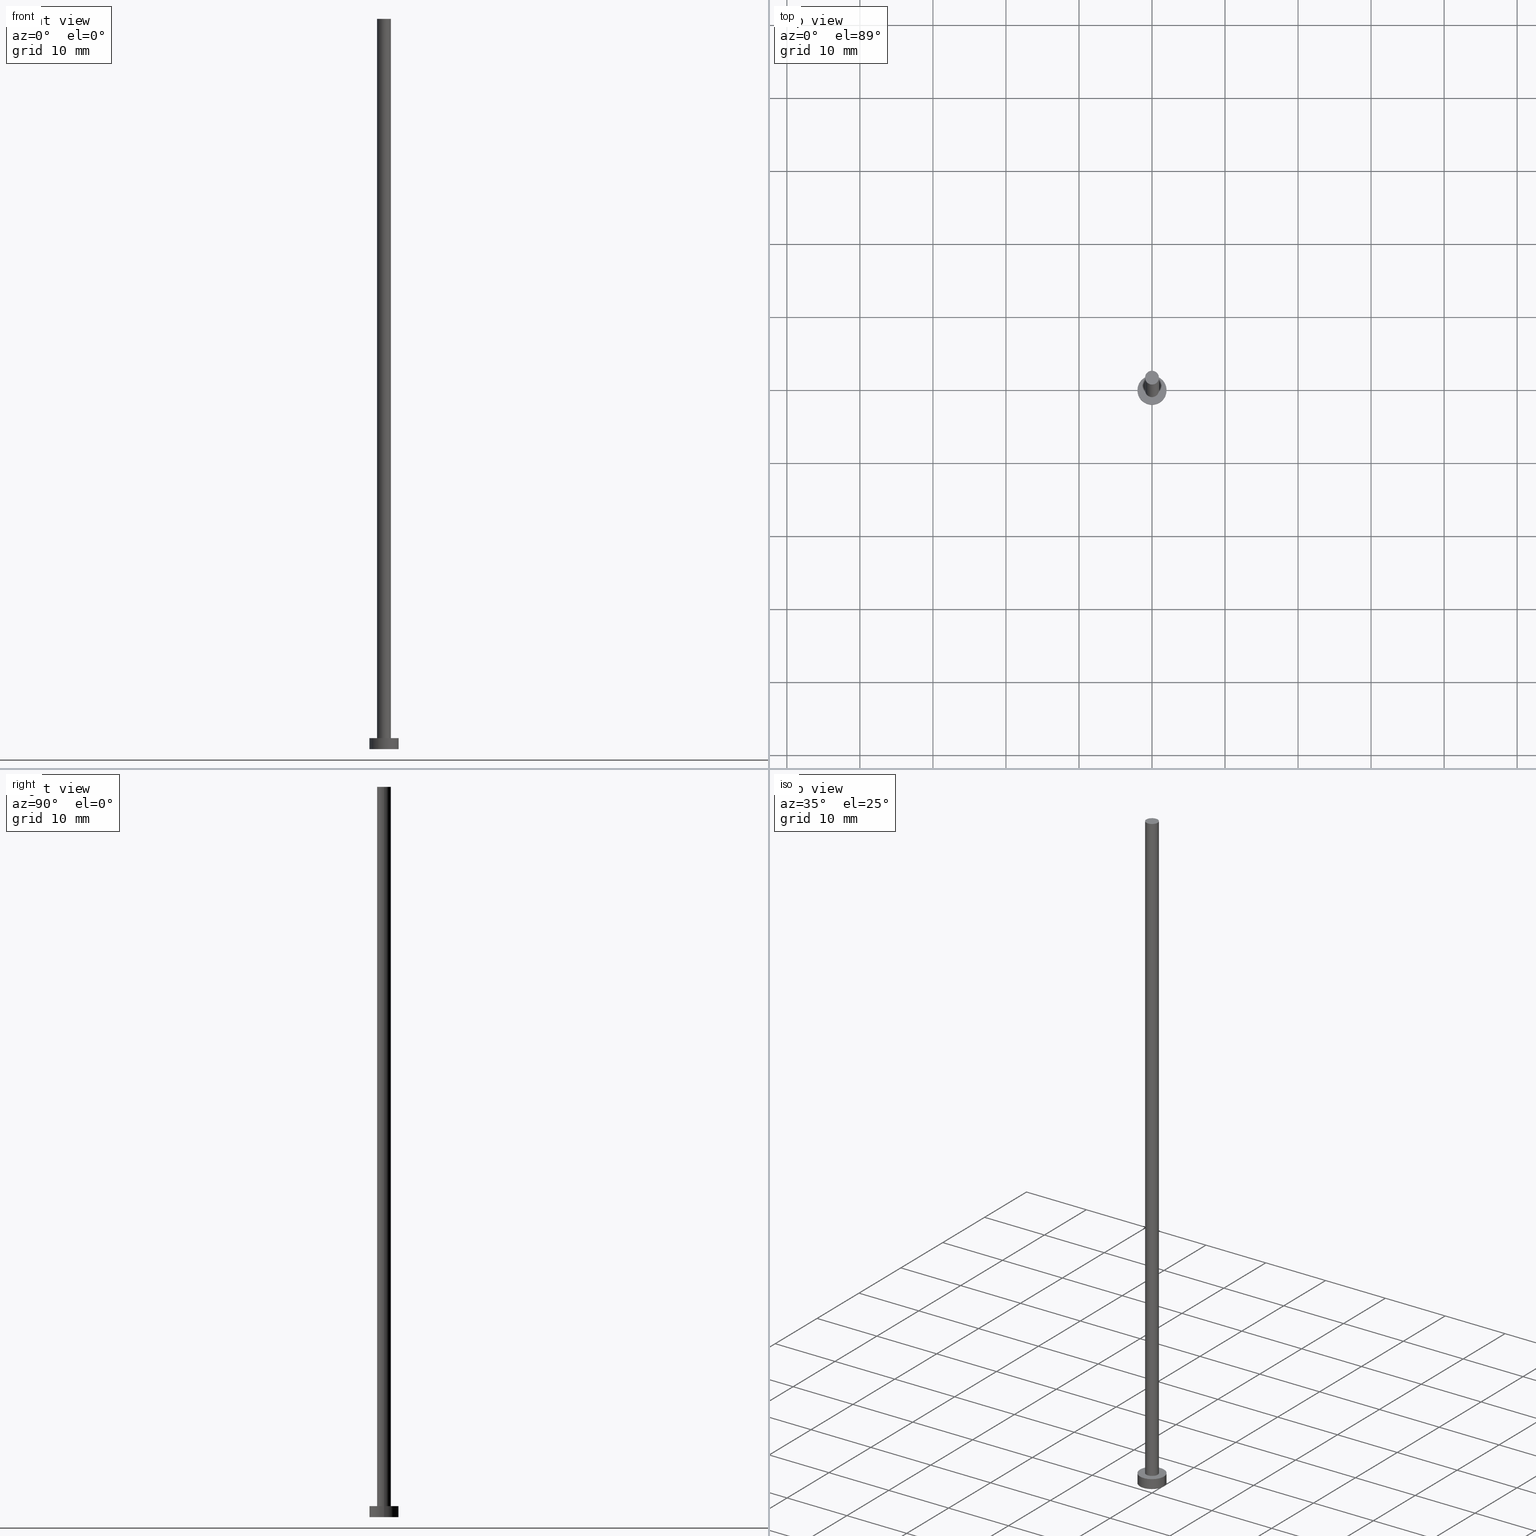
[diagram: canonical four-view strip — front | top / right | iso, engineering-drawing reading convention]
A machine part, canonical four-view strip (front | top / right | iso — engineering-drawing reading convention). The complete STEP part file that produces these views, byte-faithful:
ISO-10303-21;
HEADER;
FILE_DESCRIPTION (( 'STEP AP203' ),
    '1' );
FILE_NAME ('cf2f.STEP',
    '2023-02-13T17:15:49',
    ( '' ),
    ( '' ),
    'SwSTEP 2.0',
    'SolidWorks 2019',
    '' );
FILE_SCHEMA (( 'CONFIG_CONTROL_DESIGN' ));
ENDSEC;

DATA;
#1 = APPROVAL_DATE_TIME ( #112, #42 ) ;
#2 = LOCAL_TIME ( 18, 15, 49.00000000000000000, #139 ) ;
#3 = PERSON_AND_ORGANIZATION_ROLE ( 'design_supplier' ) ;
#4 = VERTEX_POINT ( 'NONE', #6 ) ;
#5 = CIRCLE ( 'NONE', #104, 0.9499999999999999556 ) ;
#6 = CARTESIAN_POINT ( 'NONE',  ( -2.000000000000000000, 0.000000000000000000, 1.500000000000000000 ) ) ;
#7 = CC_DESIGN_SECURITY_CLASSIFICATION ( #252, ( #191 ) ) ;
#8 = CARTESIAN_POINT ( 'NONE',  ( 0.9499999999999999556, 1.163414459189985682E-16, 100.0000000000000000 ) ) ;
#9 = DIRECTION ( 'NONE',  ( -0.000000000000000000, -0.000000000000000000, -1.000000000000000000 ) ) ;
#10 = CARTESIAN_POINT ( 'NONE',  ( 0.000000000000000000, 0.000000000000000000, 1.500000000000000000 ) ) ;
#11 = DIRECTION ( 'NONE',  ( -0.000000000000000000, -0.000000000000000000, -1.000000000000000000 ) ) ;
#12 = CALENDAR_DATE ( 2023, 13, 2 ) ;
#13 = MECHANICAL_CONTEXT ( 'NONE', #60, 'mechanical' ) ;
#14 = EDGE_CURVE ( 'NONE', #161, #103, #234, .T. ) ;
#15 = COORDINATED_UNIVERSAL_TIME_OFFSET ( 1, 0, .AHEAD. ) ;
#16 = ORIENTED_EDGE ( 'NONE', *, *, #85, .T. ) ;
#17 = ORIENTED_EDGE ( 'NONE', *, *, #157, .T. ) ;
#18 = VERTEX_POINT ( 'NONE', #239 ) ;
#19 = ADVANCED_FACE ( 'NONE', ( #63 ), #221, .T. ) ;
#20 = PERSON_AND_ORGANIZATION_ROLE ( 'classification_officer' ) ;
#21 = EDGE_LOOP ( 'NONE', ( #232, #59, #127, #61 ) ) ;
#22 = EDGE_CURVE ( 'NONE', #30, #103, #5, .T. ) ;
#23 = AXIS2_PLACEMENT_3D ( 'NONE', #49, #248, #148 ) ;
#24 = EDGE_LOOP ( 'NONE', ( #58, #97 ) ) ;
#25 = DIRECTION ( 'NONE',  ( -1.000000000000000000, 0.000000000000000000, 0.000000000000000000 ) ) ;
#26 = CARTESIAN_POINT ( 'NONE',  ( 0.9499999999999999556, 1.163414459189985682E-16, 1.500000000000000000 ) ) ;
#27 = APPROVAL ( #238, 'NEUR�EN�' ) ;
#28 = CARTESIAN_POINT ( 'NONE',  ( 0.000000000000000000, 0.000000000000000000, 100.0000000000000000 ) ) ;
#29 = CIRCLE ( 'NONE', #23, 2.000000000000000000 ) ;
#30 = VERTEX_POINT ( 'NONE', #152 ) ;
#31 = DIRECTION ( 'NONE',  ( 0.000000000000000000, 0.000000000000000000, 1.000000000000000000 ) ) ;
#32 = CC_DESIGN_DATE_AND_TIME_ASSIGNMENT ( #119, #99, ( #252 ) ) ;
#33 = CARTESIAN_POINT ( 'NONE',  ( 0.000000000000000000, 0.000000000000000000, 0.000000000000000000 ) ) ;
#34 = DIRECTION ( 'NONE',  ( 1.000000000000000000, 0.000000000000000000, 0.000000000000000000 ) ) ;
#35 = CC_DESIGN_APPROVAL ( #42, ( #136 ) ) ;
#36 = PERSON_AND_ORGANIZATION_ROLE ( 'design_owner' ) ;
#37 = PERSON_AND_ORGANIZATION_ROLE ( 'creator' ) ;
#38 = ORIENTED_EDGE ( 'NONE', *, *, #142, .F. ) ;
#39 = APPROVAL_ROLE ( '' ) ;
#40 = EDGE_LOOP ( 'NONE', ( #151, #66 ) ) ;
#41 = VERTEX_POINT ( 'NONE', #179 ) ;
#42 = APPROVAL ( #114, 'NEUR�EN�' ) ;
#43 = APPROVAL_ROLE ( '' ) ;
#44 = ORIENTED_EDGE ( 'NONE', *, *, #22, .T. ) ;
#45 = AXIS2_PLACEMENT_3D ( 'NONE', #84, #11, #202 ) ;
#46 = EDGE_CURVE ( 'NONE', #103, #30, #147, .T. ) ;
#47 = FACE_OUTER_BOUND ( 'NONE', #162, .T. ) ;
#48 = DIRECTION ( 'NONE',  ( -0.000000000000000000, -0.000000000000000000, -1.000000000000000000 ) ) ;
#49 = CARTESIAN_POINT ( 'NONE',  ( 0.000000000000000000, 0.000000000000000000, 1.500000000000000000 ) ) ;
#50 = DIRECTION ( 'NONE',  ( -1.000000000000000000, 0.000000000000000000, 0.000000000000000000 ) ) ;
#51 = CARTESIAN_POINT ( 'NONE',  ( 0.000000000000000000, 0.000000000000000000, 100.0000000000000000 ) ) ;
#52 = DIRECTION ( 'NONE',  ( 1.000000000000000000, 0.000000000000000000, 0.000000000000000000 ) ) ;
#53 = VECTOR ( 'NONE', #218, 1000.000000000000000 ) ;
#54 = DIRECTION ( 'NONE',  ( 1.000000000000000000, 0.000000000000000000, 0.000000000000000000 ) ) ;
#55 = DIRECTION ( 'NONE',  ( 0.000000000000000000, 0.000000000000000000, 1.000000000000000000 ) ) ;
#56 = APPROVAL_STATUS ( 'not_yet_approved' ) ;
#57 = UNCERTAINTY_MEASURE_WITH_UNIT (LENGTH_MEASURE( 1.000000000000000082E-05 ), #88, 'distance_accuracy_value', 'NONE');
#58 = ORIENTED_EDGE ( 'NONE', *, *, #203, .F. ) ;
#59 = ORIENTED_EDGE ( 'NONE', *, *, #14, .T. ) ;
#60 = APPLICATION_CONTEXT ( 'configuration controlled 3d designs of mechanical parts and assemblies' ) ;
#61 = ORIENTED_EDGE ( 'NONE', *, *, #85, .F. ) ;
#62 = APPROVAL_DATE_TIME ( #176, #27 ) ;
#63 = FACE_OUTER_BOUND ( 'NONE', #122, .T. ) ;
#64 = FACE_OUTER_BOUND ( 'NONE', #21, .T. ) ;
#65 = CARTESIAN_POINT ( 'NONE',  ( 0.000000000000000000, 0.000000000000000000, 1.500000000000000000 ) ) ;
#66 = ORIENTED_EDGE ( 'NONE', *, *, #181, .T. ) ;
#67 = EDGE_CURVE ( 'NONE', #4, #92, #29, .T. ) ;
#68 = LINE ( 'NONE', #224, #53 ) ;
#69 = FACE_BOUND ( 'NONE', #98, .T. ) ;
#70 = CARTESIAN_POINT ( 'NONE',  ( 0.000000000000000000, 0.000000000000000000, 1.500000000000000000 ) ) ;
#71 = DIRECTION ( 'NONE',  ( 1.000000000000000000, 0.000000000000000000, 0.000000000000000000 ) ) ;
#72 = CC_DESIGN_APPROVAL ( #27, ( #252 ) ) ;
#73 = DIRECTION ( 'NONE',  ( 1.000000000000000000, 0.000000000000000000, 0.000000000000000000 ) ) ;
#74 = PLANE ( 'NONE',  #166 ) ;
#75 = DIRECTION ( 'NONE',  ( 1.000000000000000000, 0.000000000000000000, -0.000000000000000000 ) ) ;
#76 = AXIS2_PLACEMENT_3D ( 'NONE', #65, #31, #111 ) ;
#77 = COORDINATED_UNIVERSAL_TIME_OFFSET ( 1, 0, .AHEAD. ) ;
#78 = ADVANCED_FACE ( 'NONE', ( #199 ), #167, .T. ) ;
#79 = DATE_AND_TIME ( #12, #134 ) ;
#80 = ORIENTED_EDGE ( 'NONE', *, *, #67, .F. ) ;
#81 = CYLINDRICAL_SURFACE ( 'NONE', #216, 0.9499999999999999556 ) ;
#82 = APPROVAL_PERSON_ORGANIZATION ( #160, #168, #43 ) ;
#83 = ORIENTED_EDGE ( 'NONE', *, *, #177, .T. ) ;
#84 = CARTESIAN_POINT ( 'NONE',  ( 0.000000000000000000, 0.000000000000000000, 100.0000000000000000 ) ) ;
#85 = EDGE_CURVE ( 'NONE', #18, #30, #68, .T. ) ;
#86 = APPLICATION_CONTEXT ( 'configuration controlled 3d designs of mechanical parts and assemblies' ) ;
#87 = PLANE ( 'NONE',  #183 ) ;
#88 =( LENGTH_UNIT ( ) NAMED_UNIT ( * ) SI_UNIT ( .MILLI., .METRE. ) );
#89 = CARTESIAN_POINT ( 'NONE',  ( 0.000000000000000000, 0.000000000000000000, 0.000000000000000000 ) ) ;
#90 = APPLICATION_PROTOCOL_DEFINITION ( 'international standard', 'config_control_design', 1994, #86 ) ;
#91 = APPROVAL_ROLE ( '' ) ;
#92 = VERTEX_POINT ( 'NONE', #204 ) ;
#93 = PRODUCT_DEFINITION_SHAPE ( 'NONE', 'NONE',  #136 ) ;
#94 = CALENDAR_DATE ( 2023, 13, 2 ) ;
#95 = ADVANCED_FACE ( 'NONE', ( #47 ), #241, .T. ) ;
#96 = CIRCLE ( 'NONE', #101, 2.000000000000000000 ) ;
#97 = ORIENTED_EDGE ( 'NONE', *, *, #145, .F. ) ;
#98 = EDGE_LOOP ( 'NONE', ( #125, #247 ) ) ;
#99 = DATE_TIME_ROLE ( 'classification_date' ) ;
#100 = ADVANCED_BREP_SHAPE_REPRESENTATION ( 'cf2f', ( #133, #240 ), #208 ) ;
#101 = AXIS2_PLACEMENT_3D ( 'NONE', #33, #55, #153 ) ;
#102 = ORIENTED_EDGE ( 'NONE', *, *, #242, .T. ) ;
#103 = VERTEX_POINT ( 'NONE', #26 ) ;
#104 = AXIS2_PLACEMENT_3D ( 'NONE', #10, #128, #105 ) ;
#105 = DIRECTION ( 'NONE',  ( 1.000000000000000000, 0.000000000000000000, 0.000000000000000000 ) ) ;
#106 = CIRCLE ( 'NONE', #231, 2.000000000000000000 ) ;
#107 = DIRECTION ( 'NONE',  ( 0.000000000000000000, 0.000000000000000000, 1.000000000000000000 ) ) ;
#108 = ADVANCED_FACE ( 'NONE', ( #64 ), #81, .T. ) ;
#109 = VERTEX_POINT ( 'NONE', #149 ) ;
#110 = AXIS2_PLACEMENT_3D ( 'NONE', #51, #158, #71 ) ;
#111 = DIRECTION ( 'NONE',  ( 1.000000000000000000, 0.000000000000000000, -0.000000000000000000 ) ) ;
#112 = DATE_AND_TIME ( #173, #174 ) ;
#113 = APPLICATION_PROTOCOL_DEFINITION ( 'international standard', 'config_control_design', 1994, #60 ) ;
#114 = APPROVAL_STATUS ( 'not_yet_approved' ) ;
#115 = DATE_TIME_ROLE ( 'creation_date' ) ;
#116 = CC_DESIGN_APPROVAL ( #168, ( #191 ) ) ;
#117 = ORIENTED_EDGE ( 'NONE', *, *, #145, .T. ) ;
#118 = ORIENTED_EDGE ( 'NONE', *, *, #177, .F. ) ;
#119 = DATE_AND_TIME ( #211, #2 ) ;
#120 = DESIGN_CONTEXT ( 'detailed design', #86, 'design' ) ;
#121 = VECTOR ( 'NONE', #189, 1000.000000000000000 ) ;
#122 = EDGE_LOOP ( 'NONE', ( #138, #102, #117, #38 ) ) ;
#123 = ADVANCED_FACE ( 'NONE', ( #124 ), #87, .F. ) ;
#124 = FACE_OUTER_BOUND ( 'NONE', #24, .T. ) ;
#125 = ORIENTED_EDGE ( 'NONE', *, *, #22, .F. ) ;
#126 = DIRECTION ( 'NONE',  ( -1.000000000000000000, 0.000000000000000000, 0.000000000000000000 ) ) ;
#127 = ORIENTED_EDGE ( 'NONE', *, *, #46, .T. ) ;
#128 = DIRECTION ( 'NONE',  ( 0.000000000000000000, 0.000000000000000000, 1.000000000000000000 ) ) ;
#129 = AXIS2_PLACEMENT_3D ( 'NONE', #137, #132, #34 ) ;
#130 = DIRECTION ( 'NONE',  ( 0.000000000000000000, 0.000000000000000000, 1.000000000000000000 ) ) ;
#131 = ADVANCED_FACE ( 'NONE', ( #69, #222 ), #184, .T. ) ;
#132 = DIRECTION ( 'NONE',  ( 0.000000000000000000, 0.000000000000000000, 1.000000000000000000 ) ) ;
#133 = MANIFOLD_SOLID_BREP ( 'P�idat vysunut�m3', #225 ) ;
#134 = LOCAL_TIME ( 18, 15, 49.00000000000000000, #77 ) ;
#135 = DIRECTION ( 'NONE',  ( -0.000000000000000000, -0.000000000000000000, -1.000000000000000000 ) ) ;
#136 = PRODUCT_DEFINITION ( 'NEZN�M�', '', #191, #120 ) ;
#137 = CARTESIAN_POINT ( 'NONE',  ( 0.000000000000000000, 0.000000000000000000, 1.500000000000000000 ) ) ;
#138 = ORIENTED_EDGE ( 'NONE', *, *, #181, .F. ) ;
#139 = COORDINATED_UNIVERSAL_TIME_OFFSET ( 1, 0, .AHEAD. ) ;
#140 = PERSON_AND_ORGANIZATION_ROLE ( 'creator' ) ;
#141 = COORDINATED_UNIVERSAL_TIME_OFFSET ( 1, 0, .AHEAD. ) ;
#142 = EDGE_CURVE ( 'NONE', #4, #109, #165, .T. ) ;
#143 = PRODUCT ( 'cf2f', 'cf2f', '', ( #13 ) ) ;
#144 = PERSON_AND_ORGANIZATION ( #163, #212 ) ;
#145 = EDGE_CURVE ( 'NONE', #41, #109, #96, .T. ) ;
#146 = CARTESIAN_POINT ( 'NONE',  ( 0.000000000000000000, 0.000000000000000000, 1.500000000000000000 ) ) ;
#147 = CIRCLE ( 'NONE', #198, 0.9499999999999999556 ) ;
#148 = DIRECTION ( 'NONE',  ( 1.000000000000000000, 0.000000000000000000, 0.000000000000000000 ) ) ;
#149 = CARTESIAN_POINT ( 'NONE',  ( -2.000000000000000000, 0.000000000000000000, 0.000000000000000000 ) ) ;
#150 = CC_DESIGN_PERSON_AND_ORGANIZATION_ASSIGNMENT ( #194, #140, ( #191 ) ) ;
#151 = ORIENTED_EDGE ( 'NONE', *, *, #67, .T. ) ;
#152 = CARTESIAN_POINT ( 'NONE',  ( -0.9499999999999999556, 0.000000000000000000, 1.500000000000000000 ) ) ;
#153 = DIRECTION ( 'NONE',  ( 1.000000000000000000, 0.000000000000000000, 0.000000000000000000 ) ) ;
#154 = VECTOR ( 'NONE', #236, 1000.000000000000000 ) ;
#155 = CC_DESIGN_PERSON_AND_ORGANIZATION_ASSIGNMENT ( #144, #20, ( #252 ) ) ;
#156 = LINE ( 'NONE', #209, #121 ) ;
#157 = EDGE_CURVE ( 'NONE', #161, #18, #201, .T. ) ;
#158 = DIRECTION ( 'NONE',  ( 0.000000000000000000, 0.000000000000000000, 1.000000000000000000 ) ) ;
#159 = ORIENTED_EDGE ( 'NONE', *, *, #242, .F. ) ;
#160 = PERSON_AND_ORGANIZATION ( #163, #212 ) ;
#161 = VERTEX_POINT ( 'NONE', #251 ) ;
#162 = EDGE_LOOP ( 'NONE', ( #186, #118, #16, #44 ) ) ;
#163 = PERSON ( 'NEUR�EN�', 'NEUR�EN�', 'NEUR�EN�', ('NEUR�EN�'), ('NEUR�EN�'), ('NEUR�EN�') ) ;
#164 = PERSON_AND_ORGANIZATION ( #163, #212 ) ;
#165 = LINE ( 'NONE', #226, #215 ) ;
#166 = AXIS2_PLACEMENT_3D ( 'NONE', #171, #228, #75 ) ;
#167 = CYLINDRICAL_SURFACE ( 'NONE', #244, 2.000000000000000000 ) ;
#168 = APPROVAL ( #56, 'NEUR�EN�' ) ;
#169 = DIRECTION ( 'NONE',  ( 0.000000000000000000, 0.000000000000000000, 1.000000000000000000 ) ) ;
#170 = APPROVAL_PERSON_ORGANIZATION ( #206, #42, #91 ) ;
#171 = CARTESIAN_POINT ( 'NONE',  ( 0.000000000000000000, 0.000000000000000000, 100.0000000000000000 ) ) ;
#172 =( NAMED_UNIT ( * ) PLANE_ANGLE_UNIT ( ) SI_UNIT ( $, .RADIAN. ) );
#173 = CALENDAR_DATE ( 2023, 13, 2 ) ;
#174 = LOCAL_TIME ( 18, 15, 49.00000000000000000, #15 ) ;
#175 = SECURITY_CLASSIFICATION_LEVEL ( 'unclassified' ) ;
#176 = DATE_AND_TIME ( #94, #178 ) ;
#177 = EDGE_CURVE ( 'NONE', #18, #161, #180, .T. ) ;
#178 = LOCAL_TIME ( 18, 15, 49.00000000000000000, #217 ) ;
#179 = CARTESIAN_POINT ( 'NONE',  ( 2.000000000000000000, 2.449293598294706414E-16, 0.000000000000000000 ) ) ;
#180 = CIRCLE ( 'NONE', #205, 0.9499999999999999556 ) ;
#181 = EDGE_CURVE ( 'NONE', #92, #4, #246, .T. ) ;
#182 = DIRECTION ( 'NONE',  ( 1.000000000000000000, 0.000000000000000000, 0.000000000000000000 ) ) ;
#183 = AXIS2_PLACEMENT_3D ( 'NONE', #243, #169, #245 ) ;
#184 = PLANE ( 'NONE',  #76 ) ;
#185 = CARTESIAN_POINT ( 'NONE',  ( 0.000000000000000000, 0.000000000000000000, 100.0000000000000000 ) ) ;
#186 = ORIENTED_EDGE ( 'NONE', *, *, #14, .F. ) ;
#187 = PERSON_AND_ORGANIZATION ( #163, #212 ) ;
#188 = FACE_OUTER_BOUND ( 'NONE', #214, .T. ) ;
#189 = DIRECTION ( 'NONE',  ( -0.000000000000000000, -0.000000000000000000, -1.000000000000000000 ) ) ;
#190 = ORIENTED_EDGE ( 'NONE', *, *, #203, .T. ) ;
#191 = PRODUCT_DEFINITION_FORMATION_WITH_SPECIFIED_SOURCE ( 'LIBOVOLN�', '', #143, .NOT_KNOWN. ) ;
#192 = SHAPE_DEFINITION_REPRESENTATION ( #93, #100 ) ;
#193 = CC_DESIGN_DATE_AND_TIME_ASSIGNMENT ( #79, #115, ( #136 ) ) ;
#194 = PERSON_AND_ORGANIZATION ( #163, #212 ) ;
#195 = APPROVAL_PERSON_ORGANIZATION ( #164, #27, #39 ) ;
#196 = ORIENTED_EDGE ( 'NONE', *, *, #142, .T. ) ;
#197 = CARTESIAN_POINT ( 'NONE',  ( 0.000000000000000000, 0.000000000000000000, 1.500000000000000000 ) ) ;
#198 = AXIS2_PLACEMENT_3D ( 'NONE', #146, #107, #182 ) ;
#199 = FACE_OUTER_BOUND ( 'NONE', #210, .T. ) ;
#200 = PRODUCT_RELATED_PRODUCT_CATEGORY ( 'detail', '', ( #143 ) ) ;
#201 = CIRCLE ( 'NONE', #110, 0.9499999999999999556 ) ;
#202 = DIRECTION ( 'NONE',  ( -1.000000000000000000, 0.000000000000000000, 0.000000000000000000 ) ) ;
#203 = EDGE_CURVE ( 'NONE', #109, #41, #106, .T. ) ;
#204 = CARTESIAN_POINT ( 'NONE',  ( 2.000000000000000000, 2.449293598294706414E-16, 1.500000000000000000 ) ) ;
#205 = AXIS2_PLACEMENT_3D ( 'NONE', #185, #230, #73 ) ;
#206 = PERSON_AND_ORGANIZATION ( #163, #212 ) ;
#207 =( NAMED_UNIT ( * ) SI_UNIT ( $, .STERADIAN. ) SOLID_ANGLE_UNIT ( ) );
#208 =( GEOMETRIC_REPRESENTATION_CONTEXT ( 3 ) GLOBAL_UNCERTAINTY_ASSIGNED_CONTEXT ( ( #57 ) ) GLOBAL_UNIT_ASSIGNED_CONTEXT ( ( #88, #172, #207 ) ) REPRESENTATION_CONTEXT ( 'NONE', 'WORKASPACE' ) );
#209 = CARTESIAN_POINT ( 'NONE',  ( 2.000000000000000000, 2.449293598294706414E-16, 1.500000000000000000 ) ) ;
#210 = EDGE_LOOP ( 'NONE', ( #159, #80, #196, #190 ) ) ;
#211 = CALENDAR_DATE ( 2023, 13, 2 ) ;
#212 = ORGANIZATION ( 'NEUR�EN�', 'NEUR�EN�', '' ) ;
#213 = PERSON_AND_ORGANIZATION ( #163, #212 ) ;
#214 = EDGE_LOOP ( 'NONE', ( #83, #17 ) ) ;
#215 = VECTOR ( 'NONE', #135, 1000.000000000000000 ) ;
#216 = AXIS2_PLACEMENT_3D ( 'NONE', #28, #48, #50 ) ;
#217 = COORDINATED_UNIVERSAL_TIME_OFFSET ( 1, 0, .AHEAD. ) ;
#218 = DIRECTION ( 'NONE',  ( -0.000000000000000000, -0.000000000000000000, -1.000000000000000000 ) ) ;
#219 = ADVANCED_FACE ( 'NONE', ( #188 ), #74, .T. ) ;
#220 = DIRECTION ( 'NONE',  ( -0.000000000000000000, -0.000000000000000000, -1.000000000000000000 ) ) ;
#221 = CYLINDRICAL_SURFACE ( 'NONE', #250, 2.000000000000000000 ) ;
#222 = FACE_OUTER_BOUND ( 'NONE', #40, .T. ) ;
#223 = CC_DESIGN_PERSON_AND_ORGANIZATION_ASSIGNMENT ( #187, #37, ( #136 ) ) ;
#224 = CARTESIAN_POINT ( 'NONE',  ( -0.9499999999999999556, 0.000000000000000000, 100.0000000000000000 ) ) ;
#225 = CLOSED_SHELL ( 'NONE', ( #108, #19, #78, #131, #123, #95, #219 ) ) ;
#226 = CARTESIAN_POINT ( 'NONE',  ( -2.000000000000000000, 0.000000000000000000, 1.500000000000000000 ) ) ;
#227 = LOCAL_TIME ( 18, 15, 49.00000000000000000, #141 ) ;
#228 = DIRECTION ( 'NONE',  ( 0.000000000000000000, 0.000000000000000000, 1.000000000000000000 ) ) ;
#229 = CC_DESIGN_PERSON_AND_ORGANIZATION_ASSIGNMENT ( #254, #36, ( #143 ) ) ;
#230 = DIRECTION ( 'NONE',  ( 0.000000000000000000, 0.000000000000000000, 1.000000000000000000 ) ) ;
#231 = AXIS2_PLACEMENT_3D ( 'NONE', #89, #255, #52 ) ;
#232 = ORIENTED_EDGE ( 'NONE', *, *, #157, .F. ) ;
#233 = DATE_AND_TIME ( #237, #227 ) ;
#234 = LINE ( 'NONE', #8, #154 ) ;
#235 = APPROVAL_DATE_TIME ( #233, #168 ) ;
#236 = DIRECTION ( 'NONE',  ( -0.000000000000000000, -0.000000000000000000, -1.000000000000000000 ) ) ;
#237 = CALENDAR_DATE ( 2023, 13, 2 ) ;
#238 = APPROVAL_STATUS ( 'not_yet_approved' ) ;
#239 = CARTESIAN_POINT ( 'NONE',  ( -0.9499999999999999556, 0.000000000000000000, 100.0000000000000000 ) ) ;
#240 = AXIS2_PLACEMENT_3D ( 'NONE', #249, #130, #54 ) ;
#241 = CYLINDRICAL_SURFACE ( 'NONE', #45, 0.9499999999999999556 ) ;
#242 = EDGE_CURVE ( 'NONE', #92, #41, #156, .T. ) ;
#243 = CARTESIAN_POINT ( 'NONE',  ( 0.000000000000000000, 0.000000000000000000, 0.000000000000000000 ) ) ;
#244 = AXIS2_PLACEMENT_3D ( 'NONE', #70, #220, #126 ) ;
#245 = DIRECTION ( 'NONE',  ( 1.000000000000000000, 0.000000000000000000, -0.000000000000000000 ) ) ;
#246 = CIRCLE ( 'NONE', #129, 2.000000000000000000 ) ;
#247 = ORIENTED_EDGE ( 'NONE', *, *, #46, .F. ) ;
#248 = DIRECTION ( 'NONE',  ( 0.000000000000000000, 0.000000000000000000, 1.000000000000000000 ) ) ;
#249 = CARTESIAN_POINT ( 'NONE',  ( 0.000000000000000000, 0.000000000000000000, 0.000000000000000000 ) ) ;
#250 = AXIS2_PLACEMENT_3D ( 'NONE', #197, #9, #25 ) ;
#251 = CARTESIAN_POINT ( 'NONE',  ( 0.9499999999999999556, 1.163414459189985682E-16, 100.0000000000000000 ) ) ;
#252 = SECURITY_CLASSIFICATION ( '', '', #175 ) ;
#253 = CC_DESIGN_PERSON_AND_ORGANIZATION_ASSIGNMENT ( #213, #3, ( #191 ) ) ;
#254 = PERSON_AND_ORGANIZATION ( #163, #212 ) ;
#255 = DIRECTION ( 'NONE',  ( 0.000000000000000000, 0.000000000000000000, 1.000000000000000000 ) ) ;
ENDSEC;
END-ISO-10303-21;
